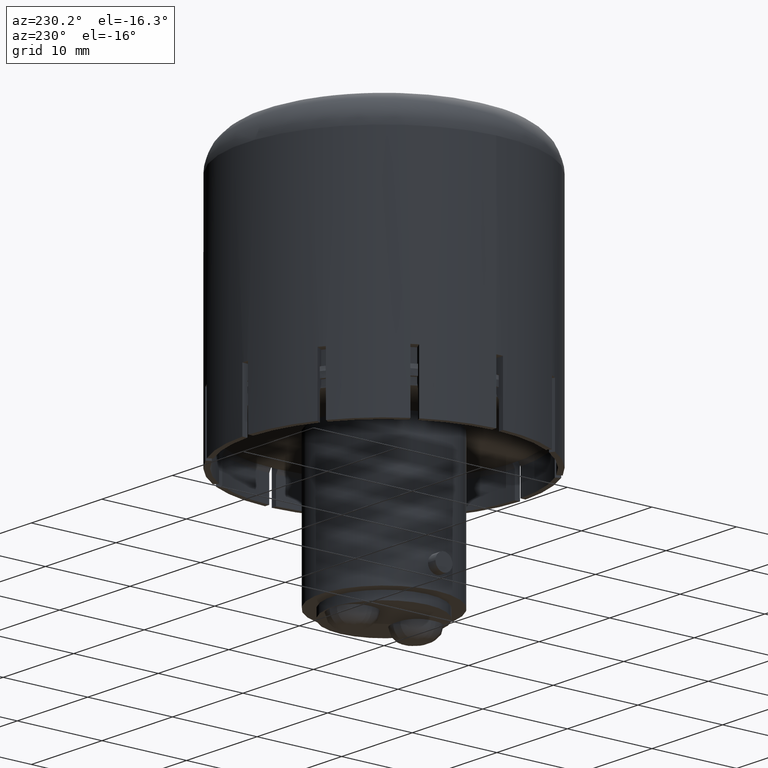
[diagram: clean part render]
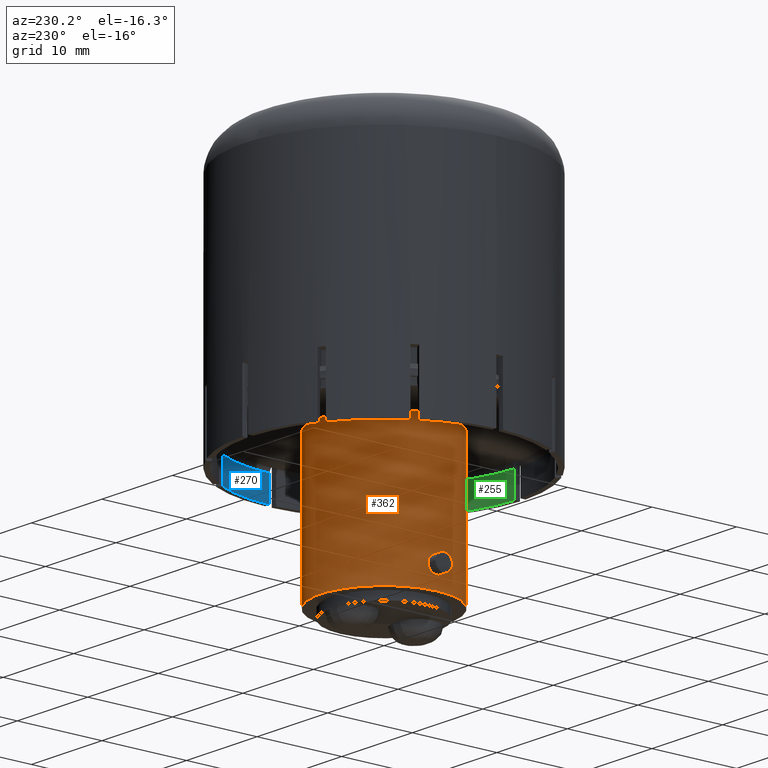
[diagram: same view with three faces highlighted in distinct colors, each labeled with its STEP entity id]
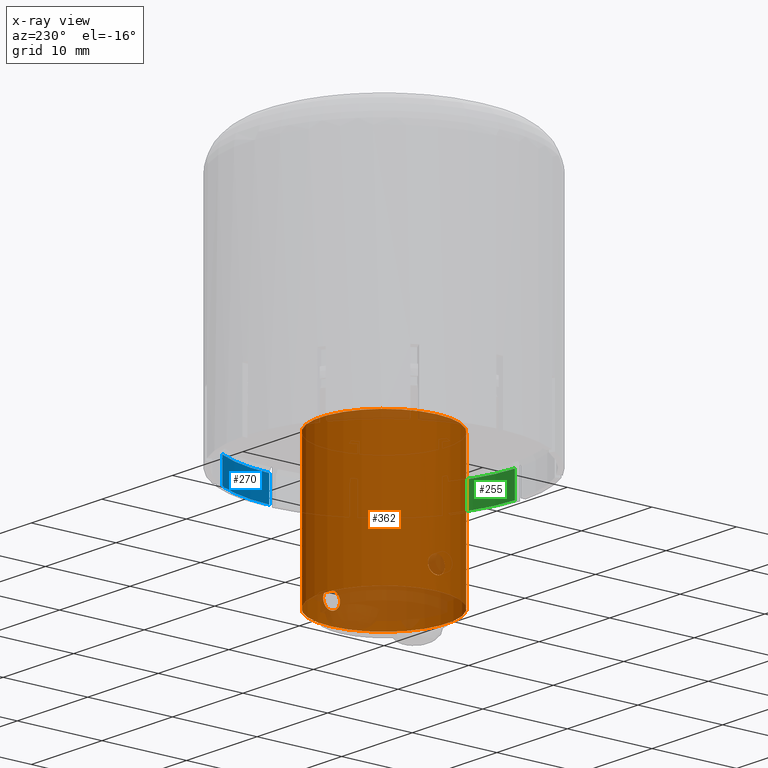
[diagram: x-ray of the same camera — body ghosted, the three highlighted faces saturated]
A machine part, auxiliary view with three faces highlighted in distinct colors.
The next image is the same camera in x-ray (body ghosted, the three faces saturated) — at least one of them is partly hidden behind the body in this view.
Their STEP definitions:

[orange] entity #362 — the highlighted cylindrical surface (bore or boss wall) has radius 7.5 mm, axis along (0, 0, 1).
#34=B_SPLINE_CURVE_WITH_KNOTS('',3,(#6304,#6305,#6306,#6307,#6308,#6309,
#6310,#6311,#6312,#6313,#6314,#6315,#6316,#6317,#6318,#6319,#6320,#6321,
#6322,#6323,#6324,#6325,#6326,#6327,#6328,#6329,#6330,#6331,#6332,#6333,
#6334,#6335,#6336,#6337,#6338,#6339,#6340,#6341,#6342,#6343,#6344,#6345,
#6346,#6347,#6348,#6349,#6350,#6351,#6352,#6353,#6354,#6355,#6356,#6357,
#6358,#6359,#6360,#6361),.UNSPECIFIED.,.T.,.F.,(1,3,3,3,3,3,3,3,3,3,3,3,
3,3,3,3,3,3,3,3,3,1),(-0.0363205762564059,0.,0.0533813893998006,0.106742949696317,
0.160402492125648,0.214277702966949,0.267827854621843,0.321018712165876,
0.374376559893815,0.428165272741745,0.481980446800844,0.535378831338652,
0.588568204050464,0.642072318251436,0.695934882177424,0.749639444757443,
0.802908735505344,0.856147835640602,0.909804659611617,0.963679423743594,
1.,1.0533813893998),.UNSPECIFIED.);
#35=B_SPLINE_CURVE_WITH_KNOTS('',3,(#6367,#6368,#6369,#6370,#6371,#6372,
#6373,#6374,#6375,#6376,#6377,#6378,#6379,#6380,#6381,#6382,#6383,#6384,
#6385,#6386,#6387,#6388,#6389,#6390,#6391,#6392,#6393,#6394,#6395,#6396,
#6397,#6398,#6399,#6400,#6401,#6402,#6403,#6404,#6405,#6406,#6407,#6408,
#6409,#6410,#6411,#6412,#6413,#6414,#6415,#6416,#6417,#6418,#6419,#6420,
#6421,#6422,#6423,#6424),.UNSPECIFIED.,.T.,.F.,(1,3,3,3,3,3,3,3,3,3,3,3,
3,3,3,3,3,3,3,3,3,1),(-0.0363205762564062,0.,0.0533813893998005,0.106742949696317,
0.160402492125648,0.214277702966949,0.267827854621843,0.321018712165876,
0.374376559893815,0.428165272741745,0.481980446800844,0.535378831338651,
0.588568204050464,0.642072318251436,0.695934882177424,0.749639444757443,
0.802908735505344,0.856147835640602,0.909804659611617,0.963679423743594,
1.,1.0533813893998),.UNSPECIFIED.);
#80=FACE_BOUND('',#785,.T.);
#81=FACE_BOUND('',#786,.T.);
#82=FACE_BOUND('',#787,.T.);
#83=FACE_BOUND('',#788,.T.);
#362=ADVANCED_FACE('',(#80,#81,#82,#83),#439,.T.);
#439=CYLINDRICAL_SURFACE('',#4020,7.5);
#785=EDGE_LOOP('',(#1950));
#786=EDGE_LOOP('',(#1951));
#787=EDGE_LOOP('',(#1952));
#788=EDGE_LOOP('',(#1953));
#1008=CIRCLE('',#3997,7.5);
#1010=CIRCLE('',#4000,7.5);
#1950=ORIENTED_EDGE('',*,*,#2985,.F.);
#1951=ORIENTED_EDGE('',*,*,#2990,.F.);
#1952=ORIENTED_EDGE('',*,*,#2988,.T.);
#1953=ORIENTED_EDGE('',*,*,#2983,.F.);
#2468=VERTEX_POINT('',#6362);
#2470=VERTEX_POINT('',#6425);
#2473=VERTEX_POINT('',#6433);
#2475=VERTEX_POINT('',#6438);
#2983=EDGE_CURVE('',#2468,#2468,#34,.T.);
#2985=EDGE_CURVE('',#2470,#2470,#35,.T.);
#2988=EDGE_CURVE('',#2473,#2473,#1008,.T.);
#2990=EDGE_CURVE('',#2475,#2475,#1010,.T.);
#3997=AXIS2_PLACEMENT_3D('',#6432,#5056,#5057);
#4000=AXIS2_PLACEMENT_3D('',#6437,#5062,#5063);
#4020=AXIS2_PLACEMENT_3D('',#6458,#5102,#5103);
#5056=DIRECTION('',(0.,0.,1.));
#5057=DIRECTION('',(1.,0.,0.));
#5062=DIRECTION('',(0.,0.,1.));
#5063=DIRECTION('',(1.,0.,0.));
#5102=DIRECTION('',(0.,0.,1.));
#5103=DIRECTION('',(-1.,0.,0.));
#6304=CARTESIAN_POINT('',(-7.5,5.0053065094259E-018,4.5));
#6305=CARTESIAN_POINT('',(-7.5,0.111373603832631,4.5));
#6306=CARTESIAN_POINT('',(-7.49738347555193,0.224280902878634,4.48085718968951));
#6307=CARTESIAN_POINT('',(-7.49276507009124,0.329350276181167,4.44420781376739));
#6308=CARTESIAN_POINT('',(-7.48814763971915,0.434397466081026,4.40756617566493));
#6309=CARTESIAN_POINT('',(-7.48143950745132,0.534501694735411,4.35244025264464));
#6310=CARTESIAN_POINT('',(-7.47420097113158,0.621546332251889,4.28337740385093));
#6311=CARTESIAN_POINT('',(-7.46692263868062,0.709069525054032,4.21393486031351));
#6312=CARTESIAN_POINT('',(-7.45896232743454,0.785804293649317,4.12849130349419));
#6313=CARTESIAN_POINT('',(-7.45219152475157,0.845482985293558,4.0340023610239));
#6314=CARTESIAN_POINT('',(-7.4453951097916,0.905387426712659,3.93915599018341));
#6315=CARTESIAN_POINT('',(-7.43966429348401,0.949754580756844,3.83254475824195));
#6316=CARTESIAN_POINT('',(-7.43637985793917,0.974810037102905,3.72303674935632));
#6317=CARTESIAN_POINT('',(-7.43311508750155,0.999715477341621,3.61418440464975));
#6318=CARTESIAN_POINT('',(-7.43220568589046,1.00621900785683,3.49944677351439));
#6319=CARTESIAN_POINT('',(-7.43387145768729,0.993758094599571,3.38844351467606));
#6320=CARTESIAN_POINT('',(-7.43552648179232,0.981377580143386,3.27815645767158));
#6321=CARTESIAN_POINT('',(-7.43975191950341,0.949953722607254,3.16852813140214));
#6322=CARTESIAN_POINT('',(-7.44554643575295,0.902129853760855,3.06853536998565));
#6323=CARTESIAN_POINT('',(-7.45135951745868,0.854152758673662,2.96822223476194));
#6324=CARTESIAN_POINT('',(-7.45886315742721,0.788374212702688,2.87485276164469));
#6325=CARTESIAN_POINT('',(-7.46630290154107,0.710155604384999,2.79595524463243));
#6326=CARTESIAN_POINT('',(-7.47380104644839,0.631322992585521,2.71643839481444));
#6327=CARTESIAN_POINT('',(-7.48138416461313,0.537668889815261,2.64942883844632));
#6328=CARTESIAN_POINT('',(-7.48726602853602,0.436860867932129,2.60047091093751));
#6329=CARTESIAN_POINT('',(-7.49314980330062,0.336020096537146,2.55149707846204));
#6330=CARTESIAN_POINT('',(-7.49744774850697,0.225202887895663,2.51924380325021));
#6331=CARTESIAN_POINT('',(-7.49913833086184,0.113685067615349,2.5064831630006));
#6332=CARTESIAN_POINT('',(-7.50081607653193,0.00301400827649725,2.49381941499407));
#6333=CARTESIAN_POINT('',(-7.49995995864212,-0.111406769447177,2.50000518282561));
#6334=CARTESIAN_POINT('',(-7.49677153191391,-0.220037720141642,2.52450863575587));
#6335=CARTESIAN_POINT('',(-7.49359485720744,-0.328268274840748,2.54892177294865));
#6336=CARTESIAN_POINT('',(-7.48804298902437,-0.433718920576365,2.59216534357005));
#6337=CARTESIAN_POINT('',(-7.48140371052082,-0.527824327030553,2.65064643416611));
#6338=CARTESIAN_POINT('',(-7.47472542388631,-0.622482636336648,2.70947112204304));
#6339=CARTESIAN_POINT('',(-7.46681381618914,-0.708265114583329,2.78531657963182));
#6340=CARTESIAN_POINT('',(-7.45951484009774,-0.778227698274443,2.87201779512596));
#6341=CARTESIAN_POINT('',(-7.45216881058411,-0.848641301252401,2.95927793681061));
#6342=CARTESIAN_POINT('',(-7.44529762717733,-0.904971681129629,3.059965867254));
#6343=CARTESIAN_POINT('',(-7.44054469832545,-0.942493815481569,3.16577641049891));
#6344=CARTESIAN_POINT('',(-7.43580605998836,-0.979903132951024,3.27126881577461));
#6345=CARTESIAN_POINT('',(-7.43308292582151,-0.9996391082684,3.38479492100536));
#6346=CARTESIAN_POINT('',(-7.43303505234316,-0.99999495530622,3.49682362437503));
#6347=CARTESIAN_POINT('',(-7.43298755599071,-1.00034799913986,3.60796981560987));
#6348=CARTESIAN_POINT('',(-7.43557035325834,-0.981642946512058,3.72070251998013));
#6349=CARTESIAN_POINT('',(-7.44016665170497,-0.945473529432298,3.82569894863637));
#6350=CARTESIAN_POINT('',(-7.44476111534752,-0.909318550882838,3.93065346359205));
#6351=CARTESIAN_POINT('',(-7.45145322004077,-0.854745782617372,4.03075534655049));
#6352=CARTESIAN_POINT('',(-7.45867478396728,-0.78623817448067,4.11792356565299));
#6353=CARTESIAN_POINT('',(-7.46595193554414,-0.717203232236462,4.2057627580426));
#6354=CARTESIAN_POINT('',(-7.47391105453787,-0.632119044450272,4.28288832436532));
#6355=CARTESIAN_POINT('',(-7.48068520549022,-0.537911569274881,4.34300127143453));
#6356=CARTESIAN_POINT('',(-7.48748527308481,-0.44334367381253,4.4033441994643));
#6357=CARTESIAN_POINT('',(-7.49322685096392,-0.336939946319274,4.44820411522602));
#6358=CARTESIAN_POINT('',(-7.49654726923315,-0.227550082735768,4.4737663784743));
#6359=CARTESIAN_POINT('',(-7.49880334178098,-0.153224667010574,4.49113476874891));
#6360=CARTESIAN_POINT('',(-7.5,-0.076361104410526,4.5));
#6361=CARTESIAN_POINT('',(-7.5,5.0053065094259E-018,4.5));
#6362=CARTESIAN_POINT('',(-7.5,5.0053065094259E-018,4.5));
#6367=CARTESIAN_POINT('',(7.5,-1.78612743424123E-017,2.5));
#6368=CARTESIAN_POINT('',(7.5,0.111373603832631,2.5));
#6369=CARTESIAN_POINT('',(7.49738347555193,0.224280902878634,2.51914281031048));
#6370=CARTESIAN_POINT('',(7.49276507009124,0.329350276181166,2.55579218623261));
#6371=CARTESIAN_POINT('',(7.48814763971915,0.434397466081025,2.59243382433507));
#6372=CARTESIAN_POINT('',(7.48143950745132,0.534501694735411,2.64755974735536));
#6373=CARTESIAN_POINT('',(7.47420097113158,0.621546332251889,2.71662259614907));
#6374=CARTESIAN_POINT('',(7.46692263868062,0.709069525054032,2.78606513968649));
#6375=CARTESIAN_POINT('',(7.45896232743454,0.785804293649317,2.87150869650581));
#6376=CARTESIAN_POINT('',(7.45219152475157,0.845482985293557,2.9659976389761));
#6377=CARTESIAN_POINT('',(7.4453951097916,0.905387426712658,3.06084400981659));
#6378=CARTESIAN_POINT('',(7.43966429348401,0.949754580756844,3.16745524175805));
#6379=CARTESIAN_POINT('',(7.43637985793917,0.974810037102905,3.27696325064368));
#6380=CARTESIAN_POINT('',(7.43311508750155,0.999715477341621,3.38581559535025));
#6381=CARTESIAN_POINT('',(7.43220568589046,1.00621900785683,3.50055322648561));
#6382=CARTESIAN_POINT('',(7.43387145768729,0.993758094599571,3.61155648532394));
#6383=CARTESIAN_POINT('',(7.43552648179232,0.981377580143386,3.72184354232842));
#6384=CARTESIAN_POINT('',(7.43975191950341,0.949953722607254,3.83147186859786));
#6385=CARTESIAN_POINT('',(7.44554643575295,0.902129853760856,3.93146463001435));
#6386=CARTESIAN_POINT('',(7.45135951745868,0.854152758673662,4.03177776523806));
#6387=CARTESIAN_POINT('',(7.45886315742721,0.788374212702688,4.12514723835531));
#6388=CARTESIAN_POINT('',(7.46630290154107,0.710155604384999,4.20404475536757));
#6389=CARTESIAN_POINT('',(7.47380104644839,0.631322992585521,4.28356160518556));
#6390=CARTESIAN_POINT('',(7.48138416461313,0.537668889815261,4.35057116155368));
#6391=CARTESIAN_POINT('',(7.48726602853602,0.43686086793213,4.39952908906249));
#6392=CARTESIAN_POINT('',(7.49314980330062,0.336020096537147,4.44850292153796));
#6393=CARTESIAN_POINT('',(7.49744774850697,0.225202887895664,4.48075619674979));
#6394=CARTESIAN_POINT('',(7.49913833086184,0.11368506761535,4.4935168369994));
#6395=CARTESIAN_POINT('',(7.50081607653193,0.00301400827649811,4.50618058500593));
#6396=CARTESIAN_POINT('',(7.49995995864212,-0.111406769447176,4.49999481717439));
#6397=CARTESIAN_POINT('',(7.49677153191391,-0.220037720141641,4.47549136424413));
#6398=CARTESIAN_POINT('',(7.49359485720744,-0.328268274840747,4.45107822705136));
#6399=CARTESIAN_POINT('',(7.48804298902437,-0.433718920576364,4.40783465642995));
#6400=CARTESIAN_POINT('',(7.48140371052082,-0.527824327030552,4.34935356583389));
#6401=CARTESIAN_POINT('',(7.47472542388631,-0.622482636336648,4.29052887795696));
#6402=CARTESIAN_POINT('',(7.46681381618914,-0.708265114583329,4.21468342036818));
#6403=CARTESIAN_POINT('',(7.45951484009774,-0.778227698274443,4.12798220487404));
#6404=CARTESIAN_POINT('',(7.45216881058411,-0.848641301252401,4.04072206318939));
#6405=CARTESIAN_POINT('',(7.44529762717733,-0.904971681129629,3.940034132746));
#6406=CARTESIAN_POINT('',(7.44054469832545,-0.942493815481569,3.83422358950109));
#6407=CARTESIAN_POINT('',(7.43580605998836,-0.979903132951024,3.72873118422539));
#6408=CARTESIAN_POINT('',(7.43308292582151,-0.9996391082684,3.61520507899464));
#6409=CARTESIAN_POINT('',(7.43303505234316,-0.99999495530622,3.50317637562497));
#6410=CARTESIAN_POINT('',(7.43298755599071,-1.00034799913986,3.39203018439013));
#6411=CARTESIAN_POINT('',(7.43557035325834,-0.981642946512058,3.27929748001987));
#6412=CARTESIAN_POINT('',(7.44016665170497,-0.945473529432298,3.17430105136363));
#6413=CARTESIAN_POINT('',(7.44476111534752,-0.909318550882838,3.06934653640795));
#6414=CARTESIAN_POINT('',(7.45145322004077,-0.854745782617372,2.96924465344951));
#6415=CARTESIAN_POINT('',(7.45867478396728,-0.78623817448067,2.88207643434701));
#6416=CARTESIAN_POINT('',(7.46595193554414,-0.717203232236462,2.7942372419574));
#6417=CARTESIAN_POINT('',(7.47391105453787,-0.632119044450272,2.71711167563468));
#6418=CARTESIAN_POINT('',(7.48068520549022,-0.537911569274883,2.65699872856547));
#6419=CARTESIAN_POINT('',(7.48748527308481,-0.443343673812531,2.5966558005357));
#6420=CARTESIAN_POINT('',(7.49322685096392,-0.336939946319275,2.55179588477398));
#6421=CARTESIAN_POINT('',(7.49654726923315,-0.227550082735769,2.5262336215257));
#6422=CARTESIAN_POINT('',(7.49880334178098,-0.153224667010575,2.50886523125109));
#6423=CARTESIAN_POINT('',(7.5,-0.0763611044105262,2.5));
#6424=CARTESIAN_POINT('',(7.5,-1.78612743424123E-017,2.5));
#6425=CARTESIAN_POINT('',(7.5,-1.78612743424123E-017,2.5));
#6432=CARTESIAN_POINT('',(0.,0.,1.));
#6433=CARTESIAN_POINT('',(7.5,0.,1.));
#6437=CARTESIAN_POINT('',(0.,0.,17.7));
#6438=CARTESIAN_POINT('',(7.5,0.,17.7));
#6458=CARTESIAN_POINT('',(0.,0.,0.));

[blue] entity #270 — the highlighted cylindrical surface (partial cylindrical patch) has radius 15.8 mm, axis along (0, 0, -1).
#270=ADVANCED_FACE('',(#508),#419,.F.);
#419=CYLINDRICAL_SURFACE('',#3846,15.8);
#508=FACE_OUTER_BOUND('',#683,.T.);
#683=EDGE_LOOP('',(#1356,#1357,#1358,#1359));
#934=CIRCLE('',#3843,15.8);
#935=CIRCLE('',#3845,15.8);
#1356=ORIENTED_EDGE('',*,*,#2751,.F.);
#1357=ORIENTED_EDGE('',*,*,#2750,.F.);
#1358=ORIENTED_EDGE('',*,*,#2752,.T.);
#1359=ORIENTED_EDGE('',*,*,#2753,.T.);
#2355=VERTEX_POINT('',#5752);
#2357=VERTEX_POINT('',#5756);
#2358=VERTEX_POINT('',#5760);
#2359=VERTEX_POINT('',#5762);
#2750=EDGE_CURVE('',#2357,#2355,#934,.T.);
#2751=EDGE_CURVE('',#2355,#2358,#3177,.T.);
#2752=EDGE_CURVE('',#2357,#2359,#3178,.T.);
#2753=EDGE_CURVE('',#2359,#2358,#935,.T.);
#3177=LINE('',#5759,#3497);
#3178=LINE('',#5761,#3498);
#3497=VECTOR('',#4590,1.);
#3498=VECTOR('',#4591,1.);
#3843=AXIS2_PLACEMENT_3D('',#5757,#4586,#4587);
#3845=AXIS2_PLACEMENT_3D('',#5763,#4592,#4593);
#3846=AXIS2_PLACEMENT_3D('',#5764,#4594,#4595);
#4586=DIRECTION('',(0.,0.,-1.));
#4587=DIRECTION('',(1.,0.,0.));
#4590=DIRECTION('',(0.,0.,-1.));
#4591=DIRECTION('',(0.,0.,-1.));
#4592=DIRECTION('',(0.,0.,-1.));
#4593=DIRECTION('',(1.,0.,0.));
#4594=DIRECTION('',(0.,0.,-1.));
#4595=DIRECTION('',(-1.,0.,0.));
#5752=CARTESIAN_POINT('',(15.7949358973058,0.400000000000006,17.3));
#5756=CARTESIAN_POINT('',(13.8788157382136,7.55105778713914,17.3));
#5757=CARTESIAN_POINT('',(9.86076131526265E-032,0.,17.3));
#5759=CARTESIAN_POINT('',(15.7949358973058,0.400000000000006,46.));
#5760=CARTESIAN_POINT('',(15.7949358973058,0.400000000000007,14.3));
#5761=CARTESIAN_POINT('',(13.8788157382136,7.55105778713914,46.));
#5762=CARTESIAN_POINT('',(13.8788157382136,7.55105778713914,14.3));
#5763=CARTESIAN_POINT('',(9.86076131526265E-032,0.,14.3));
#5764=CARTESIAN_POINT('',(9.86076131526265E-032,0.,46.));

[green] entity #255 — the highlighted cylindrical surface (partial cylindrical patch) has radius 15.8 mm, axis along (0, 0, -1).
#255=ADVANCED_FACE('',(#493),#413,.F.);
#413=CYLINDRICAL_SURFACE('',#3816,15.8);
#493=FACE_OUTER_BOUND('',#668,.T.);
#668=EDGE_LOOP('',(#1296,#1297,#1298,#1299));
#919=CIRCLE('',#3813,15.8);
#920=CIRCLE('',#3815,15.8);
#1296=ORIENTED_EDGE('',*,*,#2706,.F.);
#1297=ORIENTED_EDGE('',*,*,#2705,.F.);
#1298=ORIENTED_EDGE('',*,*,#2707,.T.);
#1299=ORIENTED_EDGE('',*,*,#2708,.T.);
#2325=VERTEX_POINT('',#5662);
#2327=VERTEX_POINT('',#5666);
#2328=VERTEX_POINT('',#5670);
#2329=VERTEX_POINT('',#5672);
#2705=EDGE_CURVE('',#2327,#2325,#919,.T.);
#2706=EDGE_CURVE('',#2325,#2328,#3147,.T.);
#2707=EDGE_CURVE('',#2327,#2329,#3148,.T.);
#2708=EDGE_CURVE('',#2329,#2328,#920,.T.);
#3147=LINE('',#5669,#3467);
#3148=LINE('',#5671,#3468);
#3467=VECTOR('',#4500,1.);
#3468=VECTOR('',#4501,1.);
#3813=AXIS2_PLACEMENT_3D('',#5667,#4496,#4497);
#3815=AXIS2_PLACEMENT_3D('',#5673,#4502,#4503);
#3816=AXIS2_PLACEMENT_3D('',#5674,#4504,#4505);
#4496=DIRECTION('',(0.,0.,-1.));
#4497=DIRECTION('',(1.,0.,0.));
#4500=DIRECTION('',(0.,0.,-1.));
#4501=DIRECTION('',(0.,0.,-1.));
#4502=DIRECTION('',(0.,0.,-1.));
#4503=DIRECTION('',(1.,0.,0.));
#4504=DIRECTION('',(0.,0.,-1.));
#4505=DIRECTION('',(-1.,0.,0.));
#5662=CARTESIAN_POINT('',(0.400000000000011,-15.7949358973058,17.3));
#5666=CARTESIAN_POINT('',(7.55105778713914,-13.8788157382136,17.3));
#5667=CARTESIAN_POINT('',(9.86076131526265E-032,0.,17.3));
#5669=CARTESIAN_POINT('',(0.400000000000011,-15.7949358973058,46.));
#5670=CARTESIAN_POINT('',(0.400000000000011,-15.7949358973058,14.3));
#5671=CARTESIAN_POINT('',(7.55105778713914,-13.8788157382136,46.));
#5672=CARTESIAN_POINT('',(7.55105778713914,-13.8788157382136,14.3));
#5673=CARTESIAN_POINT('',(9.86076131526265E-032,0.,14.3));
#5674=CARTESIAN_POINT('',(9.86076131526265E-032,0.,46.));